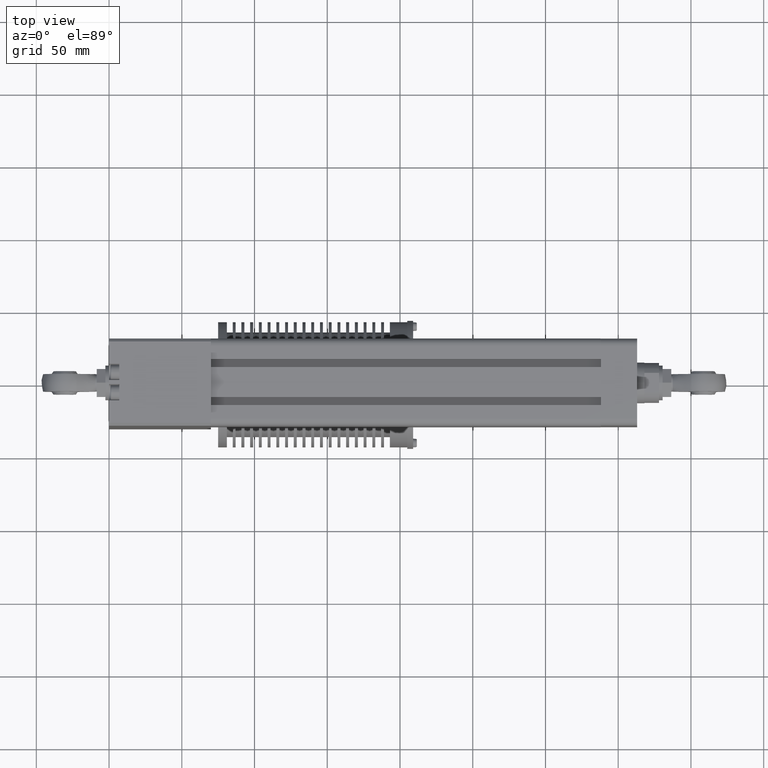
[diagram: clean part render]
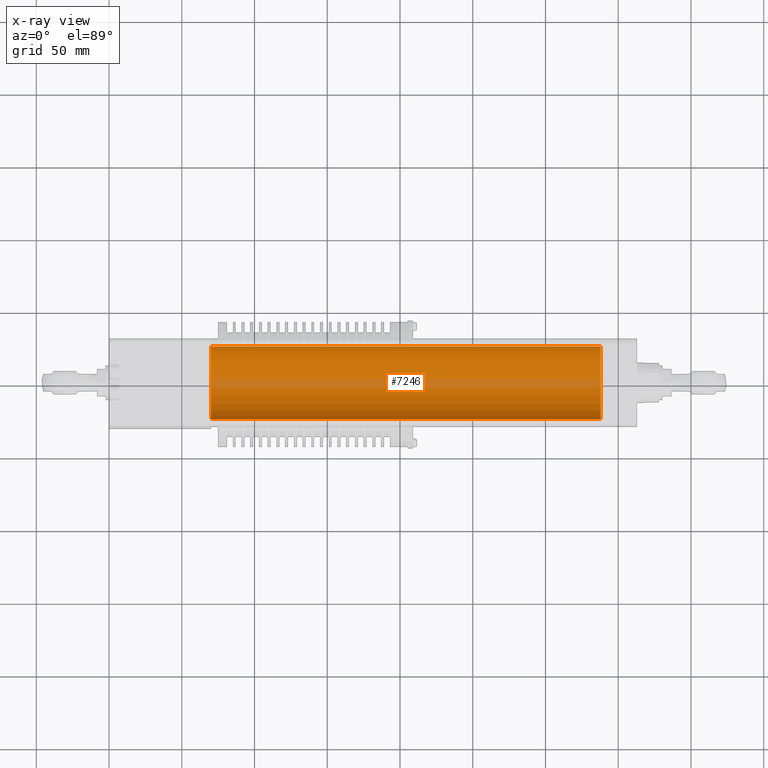
[diagram: x-ray — body ghosted, one internal face saturated and labeled with its STEP entity id]
A machine part, top view, then the same camera in x-ray: the body is ghosted and one INTERNAL B-rep face — a face not visible from any outside direction — is saturated and labeled: STEP entity #7246.
In plain terms, the highlighted cylindrical surface (edge-blend (fillet) strip) has radius 25 mm, axis along (-1, -0, -0).
Its self-contained STEP definition (entity closure, byte-faithful):
#7205=CARTESIAN_POINT('',(500.0,0.0,0.0));
#7206=DIRECTION('',(-1.0,0.0,0.0));
#7207=DIRECTION('',(0.0,-1.0,0.0));
#7208=AXIS2_PLACEMENT_3D('',#7205,#7206,#7207);
#7209=CYLINDRICAL_SURFACE('',#7208,25.0);
#7210=CARTESIAN_POINT('',(232.0,-25.0,0.0));
#7211=VERTEX_POINT('',#7210);
#7212=CARTESIAN_POINT('',(500.0,-25.0,0.0));
#7213=VERTEX_POINT('',#7212);
#7214=CARTESIAN_POINT('',(232.0,-25.0,0.0));
#7215=DIRECTION('',(1.0,0.0,0.0));
#7216=VECTOR('',#7215,268.0);
#7217=LINE('',#7214,#7216);
#7218=EDGE_CURVE('',#7211,#7213,#7217,.T.);
#7219=ORIENTED_EDGE('',*,*,#7218,.F.);
#7220=CARTESIAN_POINT('',(232.0,25.0,-3.061617E-015));
#7221=VERTEX_POINT('',#7220);
#7222=CARTESIAN_POINT('',(232.0,0.0,0.0));
#7223=DIRECTION('',(-1.0,0.0,0.0));
#7224=DIRECTION('',(0.0,-1.0,0.0));
#7225=AXIS2_PLACEMENT_3D('',#7222,#7223,#7224);
#7226=CIRCLE('',#7225,25.0);
#7227=EDGE_CURVE('',#7211,#7221,#7226,.T.);
#7228=ORIENTED_EDGE('',*,*,#7227,.T.);
#7229=CARTESIAN_POINT('',(500.0,25.0,-3.061617E-015));
#7230=VERTEX_POINT('',#7229);
#7231=CARTESIAN_POINT('',(232.0,25.0,-3.061617E-015));
#7232=DIRECTION('',(1.0,0.0,0.0));
#7233=VECTOR('',#7232,268.0);
#7234=LINE('',#7231,#7233);
#7235=EDGE_CURVE('',#7221,#7230,#7234,.T.);
#7236=ORIENTED_EDGE('',*,*,#7235,.T.);
#7237=CARTESIAN_POINT('',(500.0,0.0,0.0));
#7238=DIRECTION('',(1.0,0.0,0.0));
#7239=DIRECTION('',(0.0,-1.0,0.0));
#7240=AXIS2_PLACEMENT_3D('',#7237,#7238,#7239);
#7241=CIRCLE('',#7240,25.0);
#7242=EDGE_CURVE('',#7230,#7213,#7241,.T.);
#7243=ORIENTED_EDGE('',*,*,#7242,.T.);
#7244=EDGE_LOOP('',(#7219,#7228,#7236,#7243));
#7245=FACE_OUTER_BOUND('',#7244,.T.);
#7246=ADVANCED_FACE('',(#7245),#7209,.F.);